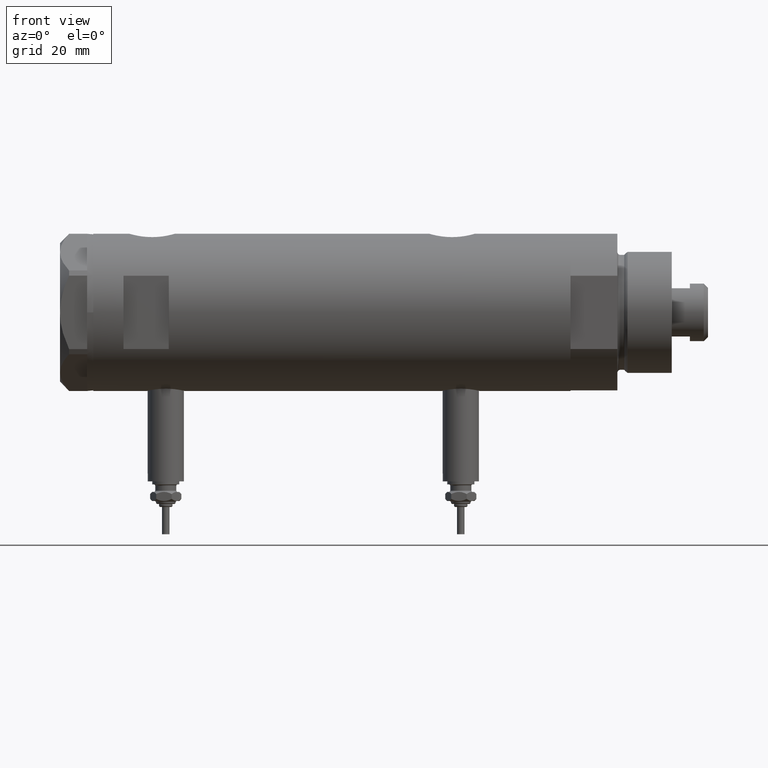
[diagram: clean part render]
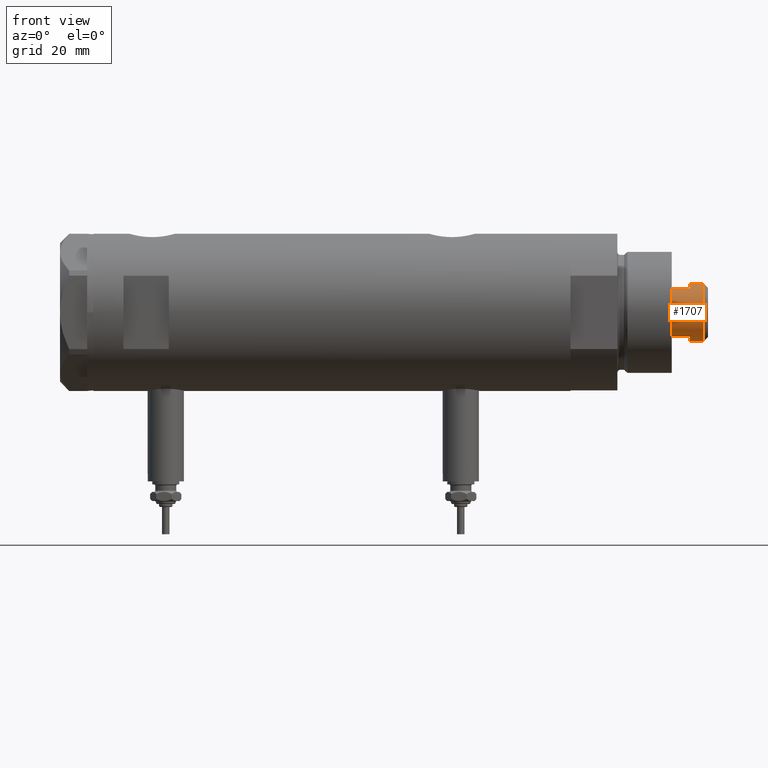
[diagram: same view with one face highlighted and labeled with its STEP entity id]
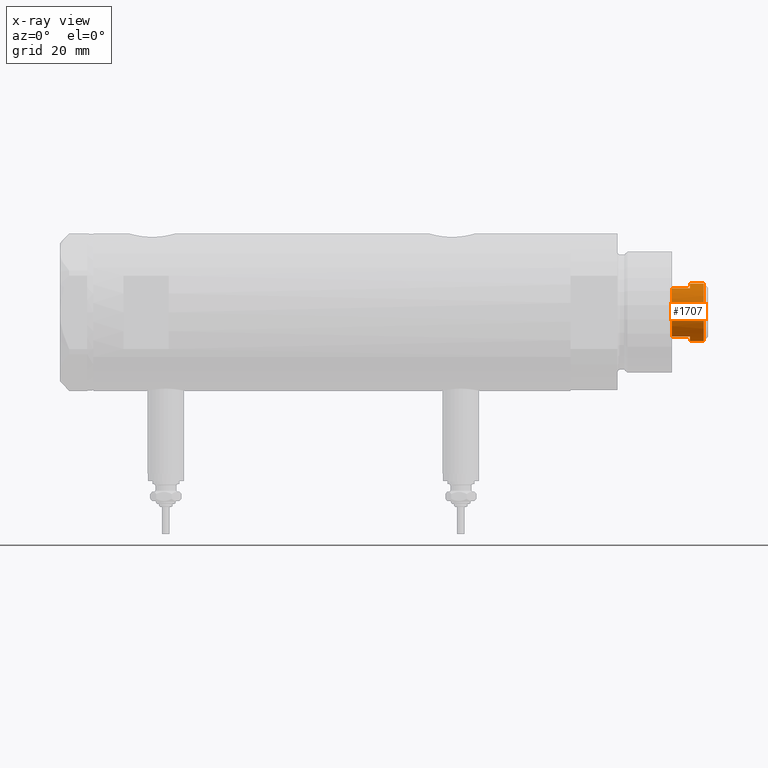
[diagram: x-ray of the same camera — body ghosted, the highlighted face saturated]
A machine part, front view. The second image highlights one B-rep face of the part: STEP entity #1707.
The next image is the same camera in x-ray: the body ghosted, the highlighted face saturated — about 0% of this face is hidden behind the body in this view.
In plain terms, the highlighted cylindrical surface (edge-blend (fillet) strip) has radius 9.5 mm, axis along (-1, -0, 0).
Its self-contained STEP definition (entity closure, byte-faithful):
#166 = DIRECTION ( 'NONE',  ( 0.000000000000000000, 0.000000000000000000, 1.000000000000000000 ) ) ;
#192 = LINE ( 'NONE', #1055, #5493 ) ;
#430 = EDGE_CURVE ( 'NONE', #3975, #615, #1080, .T. ) ;
#442 = DIRECTION ( 'NONE',  ( -0.000000000000000000, -0.000000000000000000, -1.000000000000000000 ) ) ;
#496 = ORIENTED_EDGE ( 'NONE', *, *, #2550, .T. ) ;
#570 = CYLINDRICAL_SURFACE ( 'NONE', #5082, 9.500000000000001776 ) ;
#615 = VERTEX_POINT ( 'NONE', #4129 ) ;
#848 = VERTEX_POINT ( 'NONE', #2884 ) ;
#958 = CARTESIAN_POINT ( 'NONE',  ( 0.000000000000000000, 0.000000000000000000, 178.2000000000000171 ) ) ;
#1055 = CARTESIAN_POINT ( 'NONE',  ( 9.500000000000001776, 1.163414459189985682E-15, 173.6000000000000227 ) ) ;
#1080 = CIRCLE ( 'NONE', #1285, 9.500000000000000000 ) ;
#1110 = LINE ( 'NONE', #5041, #3019 ) ;
#1285 = AXIS2_PLACEMENT_3D ( 'NONE', #5024, #166, #1598 ) ;
#1322 = CIRCLE ( 'NONE', #2124, 9.500000000000000000 ) ;
#1408 = CARTESIAN_POINT ( 'NONE',  ( -9.500000000000001776, 0.000000000000000000, 173.6000000000000227 ) ) ;
#1469 = CARTESIAN_POINT ( 'NONE',  ( -9.500000000000001776, 0.000000000000000000, 178.2000000000000171 ) ) ;
#1563 = FACE_OUTER_BOUND ( 'NONE', #4468, .T. ) ;
#1598 = DIRECTION ( 'NONE',  ( 1.000000000000000000, 0.000000000000000000, 0.000000000000000000 ) ) ;
#1707 = ADVANCED_FACE ( 'NONE', ( #1563 ), #570, .T. ) ;
#1713 = EDGE_CURVE ( 'NONE', #2934, #615, #192, .T. ) ;
#1764 = CARTESIAN_POINT ( 'NONE',  ( 0.000000000000000000, 0.000000000000000000, 167.6000000000000227 ) ) ;
#1916 = DIRECTION ( 'NONE',  ( 1.000000000000000000, 0.000000000000000000, 0.000000000000000000 ) ) ;
#1922 = CIRCLE ( 'NONE', #5517, 9.500000000000001776 ) ;
#2072 = EDGE_CURVE ( 'NONE', #3975, #2203, #1110, .T. ) ;
#2124 = AXIS2_PLACEMENT_3D ( 'NONE', #3460, #2614, #4028 ) ;
#2203 = VERTEX_POINT ( 'NONE', #3763 ) ;
#2206 = ORIENTED_EDGE ( 'NONE', *, *, #5310, .T. ) ;
#2524 = DIRECTION ( 'NONE',  ( -0.000000000000000000, -0.000000000000000000, -1.000000000000000000 ) ) ;
#2550 = EDGE_CURVE ( 'NONE', #4986, #3082, #2820, .T. ) ;
#2614 = DIRECTION ( 'NONE',  ( 0.000000000000000000, 0.000000000000000000, 1.000000000000000000 ) ) ;
#2725 = CARTESIAN_POINT ( 'NONE',  ( 7.982950582334832568, -5.149999999999997691, 173.6000000000000227 ) ) ;
#2755 = AXIS2_PLACEMENT_3D ( 'NONE', #958, #5899, #1916 ) ;
#2820 = LINE ( 'NONE', #5176, #5297 ) ;
#2836 = ORIENTED_EDGE ( 'NONE', *, *, #1713, .F. ) ;
#2884 = CARTESIAN_POINT ( 'NONE',  ( -9.500000000000000000, 0.000000000000000000, 173.6000000000000227 ) ) ;
#2934 = VERTEX_POINT ( 'NONE', #5239 ) ;
#3019 = VECTOR ( 'NONE', #6011, 1000.000000000000000 ) ;
#3082 = VERTEX_POINT ( 'NONE', #5332 ) ;
#3460 = CARTESIAN_POINT ( 'NONE',  ( 0.000000000000000000, 0.000000000000000000, 173.6000000000000227 ) ) ;
#3748 = DIRECTION ( 'NONE',  ( 1.000000000000000000, 0.000000000000000000, 0.000000000000000000 ) ) ;
#3763 = CARTESIAN_POINT ( 'NONE',  ( 7.982950582334834344, -5.150000000000034994, 167.6000000000000227 ) ) ;
#3778 = LINE ( 'NONE', #1408, #4179 ) ;
#3946 = EDGE_CURVE ( 'NONE', #3082, #2203, #1922, .T. ) ;
#3975 = VERTEX_POINT ( 'NONE', #2725 ) ;
#4028 = DIRECTION ( 'NONE',  ( 1.000000000000000000, 0.000000000000000000, 0.000000000000000000 ) ) ;
#4129 = CARTESIAN_POINT ( 'NONE',  ( 9.500000000000000000, 1.163414459189985485E-15, 173.6000000000000227 ) ) ;
#4179 = VECTOR ( 'NONE', #442, 1000.000000000000000 ) ;
#4253 = ORIENTED_EDGE ( 'NONE', *, *, #4329, .T. ) ;
#4329 = EDGE_CURVE ( 'NONE', #5435, #848, #3778, .T. ) ;
#4468 = EDGE_LOOP ( 'NONE', ( #2836, #2206, #4253, #4903, #496, #5069, #6264, #4868 ) ) ;
#4716 = CIRCLE ( 'NONE', #2755, 9.500000000000001776 ) ;
#4762 = DIRECTION ( 'NONE',  ( -0.000000000000000000, -0.000000000000000000, -1.000000000000000000 ) ) ;
#4868 = ORIENTED_EDGE ( 'NONE', *, *, #430, .T. ) ;
#4903 = ORIENTED_EDGE ( 'NONE', *, *, #5577, .T. ) ;
#4986 = VERTEX_POINT ( 'NONE', #5508 ) ;
#5017 = DIRECTION ( 'NONE',  ( -1.000000000000000000, 0.000000000000000000, 0.000000000000000000 ) ) ;
#5024 = CARTESIAN_POINT ( 'NONE',  ( 0.000000000000000000, 0.000000000000000000, 173.6000000000000227 ) ) ;
#5041 = CARTESIAN_POINT ( 'NONE',  ( 7.982950582334832568, -5.149999999999997691, 173.6000000000000227 ) ) ;
#5069 = ORIENTED_EDGE ( 'NONE', *, *, #3946, .T. ) ;
#5082 = AXIS2_PLACEMENT_3D ( 'NONE', #5462, #6053, #5017 ) ;
#5176 = CARTESIAN_POINT ( 'NONE',  ( -7.982950582334829015, -5.150000000000001243, 173.6000000000000227 ) ) ;
#5239 = CARTESIAN_POINT ( 'NONE',  ( 9.500000000000001776, 1.163414459189985682E-15, 178.2000000000000171 ) ) ;
#5297 = VECTOR ( 'NONE', #4762, 1000.000000000000000 ) ;
#5310 = EDGE_CURVE ( 'NONE', #2934, #5435, #4716, .T. ) ;
#5332 = CARTESIAN_POINT ( 'NONE',  ( -7.982950582334825462, -5.150000000000042988, 167.6000000000000227 ) ) ;
#5435 = VERTEX_POINT ( 'NONE', #1469 ) ;
#5462 = CARTESIAN_POINT ( 'NONE',  ( 0.000000000000000000, 0.000000000000000000, 173.6000000000000227 ) ) ;
#5493 = VECTOR ( 'NONE', #2524, 1000.000000000000000 ) ;
#5508 = CARTESIAN_POINT ( 'NONE',  ( -7.982950582334825462, -5.150000000000003020, 173.6000000000000227 ) ) ;
#5517 = AXIS2_PLACEMENT_3D ( 'NONE', #1764, #5752, #3748 ) ;
#5577 = EDGE_CURVE ( 'NONE', #848, #4986, #1322, .T. ) ;
#5752 = DIRECTION ( 'NONE',  ( 0.000000000000000000, 0.000000000000000000, 1.000000000000000000 ) ) ;
#5899 = DIRECTION ( 'NONE',  ( 0.000000000000000000, 0.000000000000000000, -1.000000000000000000 ) ) ;
#6011 = DIRECTION ( 'NONE',  ( -0.000000000000000000, -0.000000000000000000, -1.000000000000000000 ) ) ;
#6053 = DIRECTION ( 'NONE',  ( -0.000000000000000000, -0.000000000000000000, -1.000000000000000000 ) ) ;
#6264 = ORIENTED_EDGE ( 'NONE', *, *, #2072, .F. ) ;